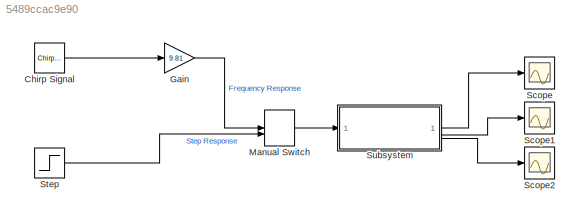
MODEL slx_5489ccac9e90
KIND model
CONFIG AbsTol = auto
CONFIG EnableMultiTasking = off
CONFIG FixedStep = 2e-6
CONFIG MaxStep = 1e-5
CONFIG MinStep = auto
CONFIG RelTol = 1e-3
CONFIG SampleTimeConstraint = Unconstrained
CONFIG SolverName = FixedStepAuto
CONFIG StartTime = 0.0
CONFIG StopTime = 1
BLOCK [Reference] Chirp Signal  REF=simulink/Sources/Chirp Signal
  SourceBlock = simulink/Sources/Chirp Signal
  SourceType = chirp
BLOCK [Gain] Gain
  Gain = 9.81
BLOCK [ManualSwitch] Manual Switch
  CurrentSetting = 0
BLOCK [Scope] Scope
  Floating = off
  NumInputPorts = 1
  ScopeSpecificationString = Simulink.scopes.TimeScopeBlockCfg('CurrentConfiguration', extmgr.ConfigurationSet(extmgr.Configuration('Core','General UI',true),extmgr.Configuration('Core','Source UI',true),extmgr.Configuration('Sources','WiredSimulink',true,'DataLoggingVariableName','V_OUT','DataLoggingSaveFormat','StructureWithTime'),extmgr.Configuration('Visuals','Time Domain',true,'SerializedDisplays',{struct('MinYLimReal','...<+1478ch>
BLOCK [Scope] Scope1
  Floating = off
  NumInputPorts = 1
  ScopeSpecificationString = Simulink.scopes.TimeScopeBlockCfg('CurrentConfiguration', extmgr.ConfigurationSet(extmgr.Configuration('Core','General UI',true),extmgr.Configuration('Core','Source UI',true),extmgr.Configuration('Sources','WiredSimulink',true,'DataLoggingVariableName','ScopeData2'),extmgr.Configuration('Visuals','Time Domain',true,'SerializedDisplays',{struct('MinYLimReal','-0.0000000000000000000000014','MaxYLimR...<+1587ch>
BLOCK [Scope] Scope2
  Floating = off
  NumInputPorts = 1
  ScopeSpecificationString = Simulink.scopes.TimeScopeBlockCfg('CurrentConfiguration', extmgr.ConfigurationSet(extmgr.Configuration('Core','General UI',true),extmgr.Configuration('Core','Source UI',true),extmgr.Configuration('Sources','WiredSimulink',true,'DataLoggingVariableName','ScopeData3'),extmgr.Configuration('Visuals','Time Domain',true,'SerializedDisplays',{struct('MinYLimReal','0.00000000000087','MaxYLimReal','0.0000...<+1470ch>
BLOCK [Step] Step
  After = 9.81
  SampleTime = 1
  Time = 0.2
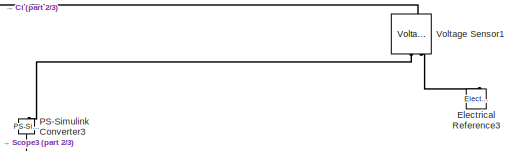
[diagram: Subsystem - part 1/3, top right region]
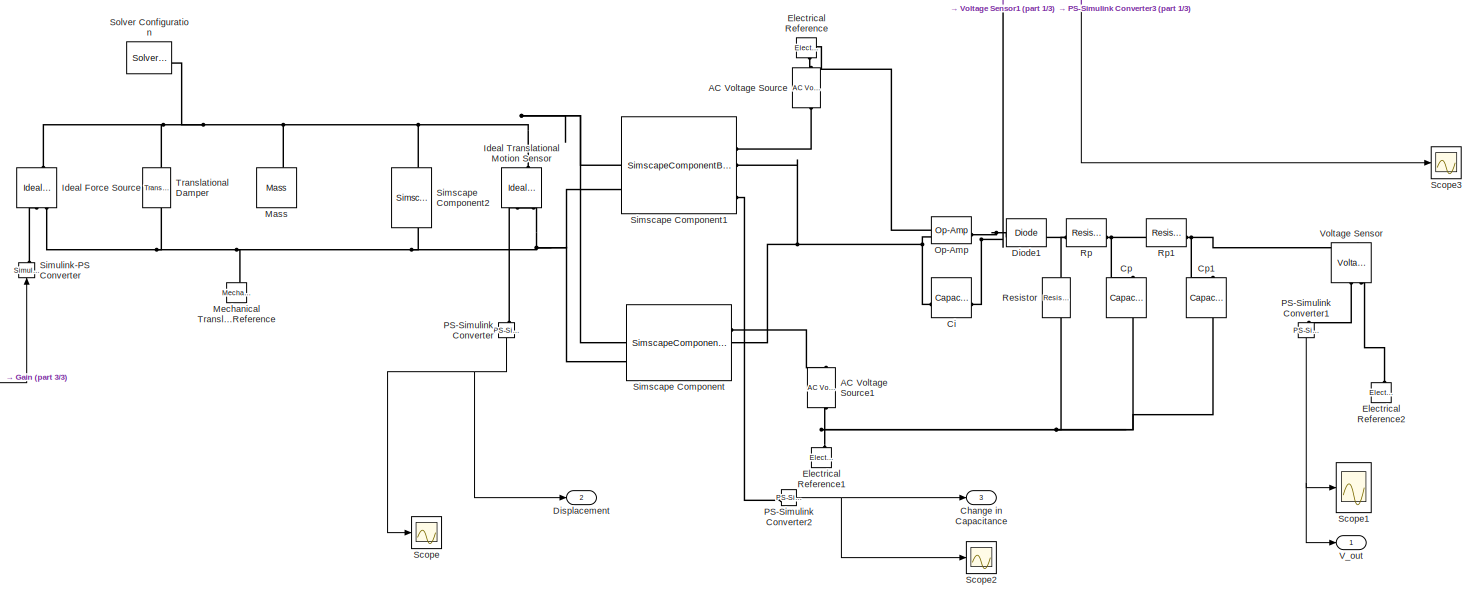
[diagram: Subsystem - part 2/3, most of the canvas]
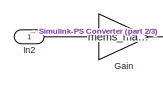
[diagram: Subsystem - part 3/3, bottom left region]
BLOCK [SubSystem] Subsystem
BLOCK [Reference] Subsystem/AC Voltage Source  REF=fl_lib/Electrical/Electrical Sources/AC Voltage Source
  NameLocation = left
  SourceBlock = fl_lib/Electrical/Electrical Sources/AC Voltage Source
  SourceType = AC Voltage Source
BLOCK [Reference] Subsystem/AC Voltage Source1  REF=fl_lib/Electrical/Electrical Sources/AC Voltage Source
  NameLocation = right
  SourceBlock = fl_lib/Electrical/Electrical Sources/AC Voltage Source
  SourceType = AC Voltage Source
BLOCK [Outport] Subsystem/Change in Capacitance
  Port = 3
BLOCK [Reference] Subsystem/Ci  REF=fl_lib/Electrical/Electrical Elements/Capacitor
  SourceBlock = fl_lib/Electrical/Electrical Elements/Capacitor
  SourceType = Capacitor
BLOCK [Reference] Subsystem/Cp  REF=fl_lib/Electrical/Electrical Elements/Capacitor
  NameLocation = left
  SourceBlock = fl_lib/Electrical/Electrical Elements/Capacitor
  SourceType = Capacitor
BLOCK [Reference] Subsystem/Cp1  REF=fl_lib/Electrical/Electrical Elements/Capacitor
  NameLocation = left
  SourceBlock = fl_lib/Electrical/Electrical Elements/Capacitor
  SourceType = Capacitor
BLOCK [Reference] Subsystem/Diode1  REF=fl_lib/Electrical/Electrical Elements/Diode
  SourceBlock = fl_lib/Electrical/Electrical Elements/Diode
  SourceType = Diode
BLOCK [Outport] Subsystem/Displacement
  Port = 2
BLOCK [Reference] Subsystem/Electrical Reference  REF=fl_lib/Electrical/Electrical Elements/Electrical Reference
  NameLocation = left
  SourceBlock = fl_lib/Electrical/Electrical Elements/Electrical Reference
  SourceType = Electrical Reference
BLOCK [Reference] Subsystem/Electrical Reference1  REF=fl_lib/Electrical/Electrical Elements/Electrical Reference
  NameLocation = right
  SourceBlock = fl_lib/Electrical/Electrical Elements/Electrical Reference
  SourceType = Electrical Reference
BLOCK [Reference] Subsystem/Electrical Reference2  REF=fl_lib/Electrical/Electrical Elements/Electrical Reference
  NameLocation = right
  SourceBlock = fl_lib/Electrical/Electrical Elements/Electrical Reference
  SourceType = Electrical Reference
BLOCK [Reference] Subsystem/Electrical Reference3  REF=fl_lib/Electrical/Electrical Elements/Electrical Reference
  NameLocation = right
  SourceBlock = fl_lib/Electrical/Electrical Elements/Electrical Reference
  SourceType = Electrical Reference
BLOCK [Gain] Subsystem/Gain
  Gain = mems_mass
BLOCK [Reference] Subsystem/Ideal Force Source  REF=fl_lib/Mechanical/Mechanical Sources/Ideal Force Source
  NameLocation = right
  SourceBlock = fl_lib/Mechanical/Mechanical Sources/Ideal Force Source
  SourceType = Ideal Force Source
BLOCK [Reference] Subsystem/Ideal Translational Motion Sensor  REF=fl_lib/Mechanical/Mechanical Sensors/Ideal Translational
Motion Sensor
  NameLocation = left
  SourceBlock = fl_lib/Mechanical/Mechanical Sensors/Ideal Translational\nMotion Sensor
  SourceType = Ideal Translational\nMotion Sensor
BLOCK [Inport] Subsystem/In2
BLOCK [Reference] Subsystem/Mass  REF=fl_lib/Mechanical/Translational
Elements/Mass
  NameLocation = right
  SourceBlock = fl_lib/Mechanical/Translational\nElements/Mass
  SourceType = Mass
BLOCK [Reference] Subsystem/Mechanical Translational Reference  REF=fl_lib/Mechanical/Translational
Elements/Mechanical
Translational
Reference
  NameLocation = right
  SourceBlock = fl_lib/Mechanical/Translational\nElements/Mechanical\nTranslational\nReference
  SourceType = Mechanical\nTranslational\nReference
BLOCK [Reference] Subsystem/Op-Amp  REF=fl_lib/Electrical/Electrical Elements/Op-Amp
  SourceBlock = fl_lib/Electrical/Electrical Elements/Op-Amp
  SourceType = Op-Amp
BLOCK [Reference] Subsystem/PS-Simulink Converter  REF=nesl_utility/PS-Simulink
Converter
  NameLocation = right
  SourceBlock = nesl_utility/PS-Simulink\nConverter
  SourceType = PS-Simulink\nConverter
BLOCK [Reference] Subsystem/PS-Simulink Converter1  REF=nesl_utility/PS-Simulink
Converter
  NameLocation = left
  SourceBlock = nesl_utility/PS-Simulink\nConverter
  SourceType = PS-Simulink\nConverter
BLOCK [Reference] Subsystem/PS-Simulink Converter2  REF=nesl_utility/PS-Simulink
Converter
  SourceBlock = nesl_utility/PS-Simulink\nConverter
  SourceType = PS-Simulink\nConverter
BLOCK [Reference] Subsystem/PS-Simulink Converter3  REF=nesl_utility/PS-Simulink
Converter
  NameLocation = left
  SourceBlock = nesl_utility/PS-Simulink\nConverter
  SourceType = PS-Simulink\nConverter
BLOCK [Reference] Subsystem/Resistor  REF=fl_lib/Electrical/Electrical Elements/Resistor
  NameLocation = left
  SourceBlock = fl_lib/Electrical/Electrical Elements/Resistor
  SourceType = Resistor
BLOCK [Reference] Subsystem/Rp  REF=fl_lib/Electrical/Electrical Elements/Resistor
  SourceBlock = fl_lib/Electrical/Electrical Elements/Resistor
  SourceType = Resistor
BLOCK [Reference] Subsystem/Rp1  REF=fl_lib/Electrical/Electrical Elements/Resistor
  SourceBlock = fl_lib/Electrical/Electrical Elements/Resistor
  SourceType = Resistor
BLOCK [Scope] Subsystem/Scope
  Floating = off
  NumInputPorts = 1
  ScopeSpecificationString = Simulink.scopes.TimeScopeBlockCfg('CurrentConfiguration', extmgr.ConfigurationSet(extmgr.Configuration('Core','General UI',true),extmgr.Configuration('Core','Source UI',true),extmgr.Configuration('Sources','WiredSimulink',true),extmgr.Configuration('Visuals','Time Domain',true,'SerializedDisplays',{struct('MinYLimReal','-0.00000039','MaxYLimReal','0.00000039','YLabelReal','','MinYLimMag','0.000000...<+1436ch>
BLOCK [Scope] Subsystem/Scope1
  Floating = off
  NumInputPorts = 1
  ScopeSpecificationString = Simulink.scopes.TimeScopeBlockCfg('CurrentConfiguration', extmgr.ConfigurationSet(extmgr.Configuration('Core','General UI',true),extmgr.Configuration('Core','Source UI',true),extmgr.Configuration('Sources','WiredSimulink',true,'DataLoggingVariableName','Scope_1','DataLoggingSaveFormat','StructureWithTime'),extmgr.Configuration('Visuals','Time Domain',true,'SerializedDisplays',{struct('MinYLimReal'...<+1561ch>
BLOCK [Scope] Subsystem/Scope2
  Floating = off
  NumInputPorts = 1
  ScopeSpecificationString = Simulink.scopes.TimeScopeBlockCfg('CurrentConfiguration', extmgr.ConfigurationSet(extmgr.Configuration('Core','General UI',true),extmgr.Configuration('Core','Source UI',true),extmgr.Configuration('Sources','WiredSimulink',true,'DataLoggingVariableName','ScopeData1'),extmgr.Configuration('Visuals','Time Domain',true,'SerializedDisplays',{struct('MinYLimReal','0.000000000000937','MaxYLimReal','0.000...<+1515ch>
BLOCK [Scope] Subsystem/Scope3
  Floating = off
  NumInputPorts = 1
  ScopeSpecificationString = Simulink.scopes.TimeScopeBlockCfg('CurrentConfiguration', extmgr.ConfigurationSet(extmgr.Configuration('Core','General UI',true),extmgr.Configuration('Core','Source UI',true),extmgr.Configuration('Sources','WiredSimulink',true,'DataLoggingVariableName','ScopeData1'),extmgr.Configuration('Visuals','Time Domain',true,'SerializedDisplays',{struct('MinYLimReal','-0.27498','MaxYLimReal','0.275','YLabel...<+1431ch>
BLOCK [SimscapeComponentBlock] Subsystem/Simscape Component
  ClassName = EMdiport_GV_neg
  Co = C1
  Co_conf = compiletime
  Co_unit = F
  ComponentPath = EMdiport_GV_neg
  ComponentVariantNames = ["EMdiport_GV_neg"]
  ComponentVariants = ["EMdiport_GV_neg"]
  CopyFcn = simscape.engine.sli.internal.componentblockcallback(gcbh,'COPY')
  InternalSimscapePortConfiguration = {"Bottom":[],"Left":[{"id":"pm","label":"m+","type":"foundation.mechanical.translational.translational"},{"id":"nm","label":"m-","type":"foundation.mechanical.translational.translational"}],"Right":[{"id":"pe","label":"e+","type":"foundation.electrical.electrical"},{"id":"ne","label":"e-","type":"foundation.electrical.electrical"},{"id":"dc","label":"dc","type":"output"},{"id":"C","label":"C(t)","...<+26ch>
  MaskType = EMdiport_GV_neg
  PreCopyFcn = simscape.engine.sli.internal.componentblockcallback(gcbh,'PRECOPY')
  PreDeleteFcn = simscape.engine.sli.internal.componentblockcallback(gcbh,'PREDELETE')
  SchemaVersion = 1
  SourceFile = EMdiport_GV_neg
  del_C = 0
  del_C_nominal_specify = off
  del_C_nominal_unit = F/m
  del_C_nominal_value = 1
  del_C_priority = None
  del_C_specify = off
  del_C_unit = F/m
  do = d1
  do_conf = compiletime
  do_unit = m
  f = 0
  f_nominal_specify = off
  f_nominal_unit = N
  f_nominal_value = 1
  f_priority = None
  f_specify = off
  f_unit = N
  i = 0
  i_nominal_specify = off
  i_nominal_unit = A
  i_nominal_value = 1
  i_priority = None
  i_specify = off
  i_unit = A
  u = 0
  u_nominal_specify = off
  u_nominal_unit = V
  u_nominal_value = 1
  u_priority = None
  u_specify = off
  u_unit = V
  v = 0
  v_nominal_specify = off
  v_nominal_unit = m/s
  v_nominal_value = 1
  v_priority = None
  v_specify = off
  v_unit = m/s
  x = 0
  x_nominal_specify = off
  x_nominal_unit = m
  x_nominal_value = 1
  x_priority = None
  x_specify = off
  x_unit = m
BLOCK [SimscapeComponentBlock] Subsystem/Simscape Component1
  ClassName = EMdiport_GV_pos
  Co = C1
  Co_conf = compiletime
  Co_unit = F
  ComponentPath = EMdiport_GV_pos
  ComponentVariantNames = ["EMdiport_GV_pos"]
  ComponentVariants = ["EMdiport_GV_pos"]
  CopyFcn = simscape.engine.sli.internal.componentblockcallback(gcbh,'COPY')
  InternalSimscapePortConfiguration = {"Bottom":[],"Left":[{"id":"pm","label":"m+","type":"foundation.mechanical.translational.translational"},{"id":"nm","label":"m-","type":"foundation.mechanical.translational.translational"}],"Right":[{"id":"pe","label":"e+","type":"foundation.electrical.electrical"},{"id":"ne","label":"e-","type":"foundation.electrical.electrical"},{"id":"dc","label":"dc","type":"output"},{"id":"C","label":"C(t)","...<+26ch>
  MaskType = EMdiport_GV_pos
  PreCopyFcn = simscape.engine.sli.internal.componentblockcallback(gcbh,'PRECOPY')
  PreDeleteFcn = simscape.engine.sli.internal.componentblockcallback(gcbh,'PREDELETE')
  SchemaVersion = 1
  SourceFile = EMdiport_GV_pos
  del_C = 0
  del_C_nominal_specify = off
  del_C_nominal_unit = F/m
  del_C_nominal_value = 1
  del_C_priority = None
  del_C_specify = off
  del_C_unit = F/m
  do = d1
  do_conf = compiletime
  do_unit = m
  f = 0
  f_nominal_specify = off
  f_nominal_unit = N
  f_nominal_value = 1
  f_priority = None
  f_specify = off
  f_unit = N
  i = 0
  i_nominal_specify = off
  i_nominal_unit = A
  i_nominal_value = 1
  i_priority = None
  i_specify = off
  i_unit = A
  u = 0
  u_nominal_specify = off
  u_nominal_unit = V
  u_nominal_value = 1
  u_priority = None
  u_specify = off
  u_unit = V
  v = 0
  v_nominal_specify = off
  v_nominal_unit = m/s
  v_nominal_value = 1
  v_priority = None
  v_specify = off
  v_unit = m/s
  x = 0
  x_nominal_specify = off
  x_nominal_unit = m
  x_nominal_value = 1
  x_priority = None
  x_specify = off
  x_unit = m
BLOCK [SimscapeComponentBlock] Subsystem/Simscape Component2
  ClassName = nonlinear_spring
  ComponentPath = nonlinear_spring
  ComponentVariantNames = ["nonlinear_spring"]
  ComponentVariants = ["nonlinear_spring"]
  CopyFcn = simscape.engine.sli.internal.componentblockcallback(gcbh,'COPY')
  InternalSimscapePortConfiguration = {"Bottom":[],"Left":[{"id":"R","label":"R","type":"foundation.mechanical.translational.translational"}],"Right":[{"id":"C","label":"C","type":"foundation.mechanical.translational.translational"}],"Top":[]}
  MaskType = nonlinear_spring
  NameLocation = left
  PreCopyFcn = simscape.engine.sli.internal.componentblockcallback(gcbh,'PRECOPY')
  PreDeleteFcn = simscape.engine.sli.internal.componentblockcallback(gcbh,'PREDELETE')
  SchemaVersion = 1
  SourceFile = nonlinear_spring
  dstop = 10
  dstop_conf = compiletime
  dstop_unit = um
  f = 0
  f_nominal_specify = off
  f_nominal_unit = N
  f_nominal_value = 1
  f_priority = None
  f_specify = off
  f_unit = N
  k = mems_k
  k_conf = compiletime
  k_unit = N/m
  v = 0
  v_nominal_specify = off
  v_nominal_unit = m/s
  v_nominal_value = 1
  v_priority = None
  v_specify = off
  v_unit = m/s
  x = 0
  x_nominal_specify = off
  x_nominal_unit = m
  x_nominal_value = 1
  x_priority = High
  x_specify = off
  x_unit = m
BLOCK [Reference] Subsystem/Simulink-PS Converter  REF=nesl_utility/Simulink-PS
Converter
  NameLocation = right
  SourceBlock = nesl_utility/Simulink-PS\nConverter
  SourceType = Simulink-PS\nConverter
BLOCK [Reference] Subsystem/Solver Configuration  REF=nesl_utility/Solver
Configuration
  SourceBlock = nesl_utility/Solver\nConfiguration
  SourceType = Solver\nConfiguration
BLOCK [Reference] Subsystem/Translational Damper  REF=fl_lib/Mechanical/Translational
Elements/Translational Damper
  NameLocation = left
  SourceBlock = fl_lib/Mechanical/Translational\nElements/Translational Damper
  SourceType = Translational Damper
BLOCK [Outport] Subsystem/V_out
BLOCK [Reference] Subsystem/Voltage Sensor  REF=fl_lib/Electrical/Electrical Sensors/Voltage Sensor
  NameLocation = right
  SourceBlock = fl_lib/Electrical/Electrical Sensors/Voltage Sensor
  SourceType = Voltage Sensor
BLOCK [Reference] Subsystem/Voltage Sensor1  REF=fl_lib/Electrical/Electrical Sensors/Voltage Sensor
  NameLocation = right
  SourceBlock = fl_lib/Electrical/Electrical Sensors/Voltage Sensor
  SourceType = Voltage Sensor
LINE Chirp Signal:1 -> Gain:1
LINE Gain:1 -> Manual Switch:1
LINE Manual Switch:1 -> Subsystem:1
LINE Step:1 -> Manual Switch:2
LINE Subsystem/Gain:1 -> Subsystem/Simulink-PS Converter:1
LINE Subsystem/In2:1 -> Subsystem/Gain:1
NET Subsystem/PS-Simulink Converter1:1 -> Subsystem/Scope1:1, Subsystem/V_out:1
NET Subsystem/PS-Simulink Converter2:1 -> Subsystem/Change in Capacitance:1, Subsystem/Scope2:1
LINE Subsystem/PS-Simulink Converter3:1 -> Subsystem/Scope3:1
NET Subsystem/PS-Simulink Converter:1 -> Subsystem/Displacement:1, Subsystem/Scope:1
LINE Subsystem:1 -> Scope:1
LINE Subsystem:2 -> Scope1:1
LINE Subsystem:3 -> Scope2:1
PLINE Subsystem/AC Voltage Source1:LConn1 -- Subsystem/Simscape Component:RConn1
PNET net1: Subsystem/AC Voltage Source1:RConn1 -- Subsystem/Cp1:RConn1 -- Subsystem/Cp:RConn1 -- Subsystem/Electrical Reference1:LConn1 -- Subsystem/Resistor:RConn1
PLINE Subsystem/AC Voltage Source:LConn1 -- Subsystem/Simscape Component1:RConn1
PNET net2: Subsystem/AC Voltage Source:RConn1 -- Subsystem/Electrical Reference:LConn1 -- Subsystem/Op-Amp:LConn1
PNET net3: Subsystem/Ci:LConn1 -- Subsystem/Op-Amp:LConn2 -- Subsystem/Simscape Component1:RConn2 -- Subsystem/Simscape Component:RConn2
PNET net4: Subsystem/Ci:RConn1 -- Subsystem/Diode1:LConn1 -- Subsystem/Op-Amp:RConn1 -- Subsystem/Voltage Sensor1:LConn1
PNET net5: Subsystem/Cp1:LConn1 -- Subsystem/Rp1:RConn1 -- Subsystem/Voltage Sensor:LConn1
PNET net6: Subsystem/Cp:LConn1 -- Subsystem/Rp1:LConn1 -- Subsystem/Rp:RConn1
PNET net7: Subsystem/Diode1:RConn1 -- Subsystem/Resistor:LConn1 -- Subsystem/Rp:LConn1
PLINE Subsystem/Electrical Reference2:LConn1 -- Subsystem/Voltage Sensor:RConn2
PLINE Subsystem/Electrical Reference3:LConn1 -- Subsystem/Voltage Sensor1:RConn2
PNET net8: Subsystem/Ideal Force Source:LConn1 -- Subsystem/Ideal Translational Motion Sensor:LConn1 -- Subsystem/Mass:LConn1 -- Subsystem/Simscape Component1:LConn1 -- Subsystem/Simscape Component2:LConn1 -- Subsystem/Simscape Component:LConn1 -- Subsystem/Solver Configuration:RConn1 -- Subsystem/Translational Damper:LConn1
PLINE Subsystem/Ideal Force Source:RConn1 -- Subsystem/Simulink-PS Converter:RConn1
PNET net9: Subsystem/Ideal Force Source:RConn2 -- Subsystem/Ideal Translational Motion Sensor:RConn1 -- Subsystem/Mechanical Translational Reference:LConn1 -- Subsystem/Simscape Component1:LConn2 -- Subsystem/Simscape Component2:RConn1 -- Subsystem/Simscape Component:LConn2 -- Subsystem/Translational Damper:RConn1
PLINE Subsystem/Ideal Translational Motion Sensor:RConn3 -- Subsystem/PS-Simulink Converter:LConn1
PLINE Subsystem/PS-Simulink Converter1:LConn1 -- Subsystem/Voltage Sensor:RConn1
PLINE Subsystem/PS-Simulink Converter2:LConn1 -- Subsystem/Simscape Component1:RConn4
PLINE Subsystem/PS-Simulink Converter3:LConn1 -- Subsystem/Voltage Sensor1:RConn1
note: NET lines group one-source signal fan-out (src -> all destinations, sorted); 1:1 wires keep LINE; PNET lines group multi-terminal physical nets as a canonical sorted terminal list (undirected conserving connections); 2-terminal nets keep the pairwise PLINE form
